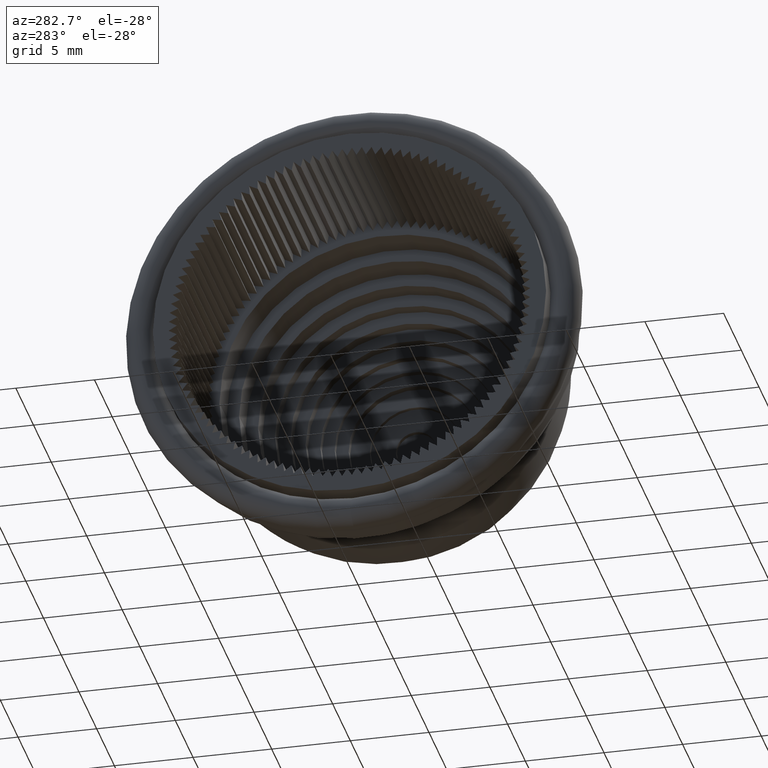
[diagram: clean part render]
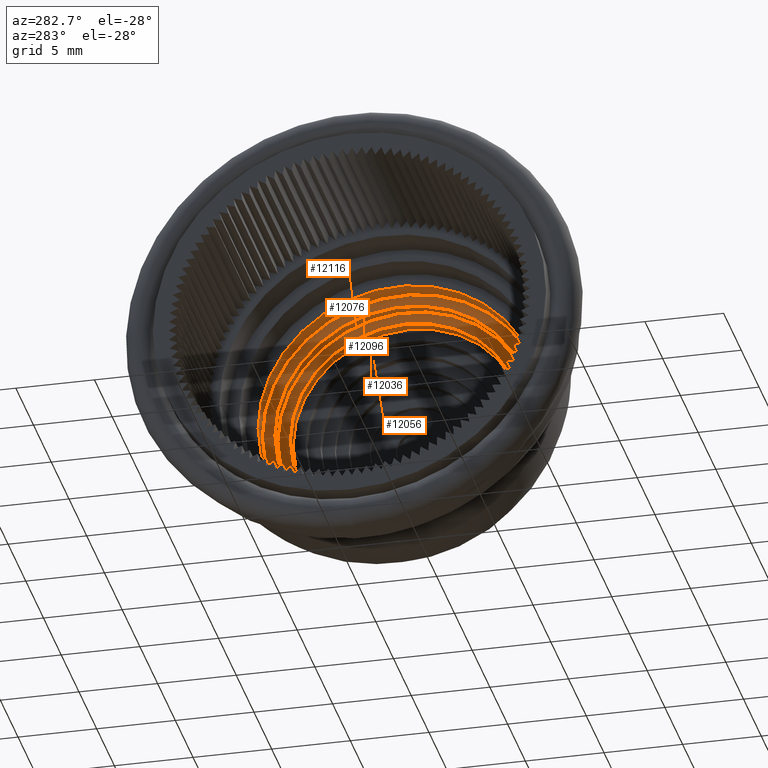
[diagram: same view with one multi-face feature highlighted, each face labeled with its STEP entity id]
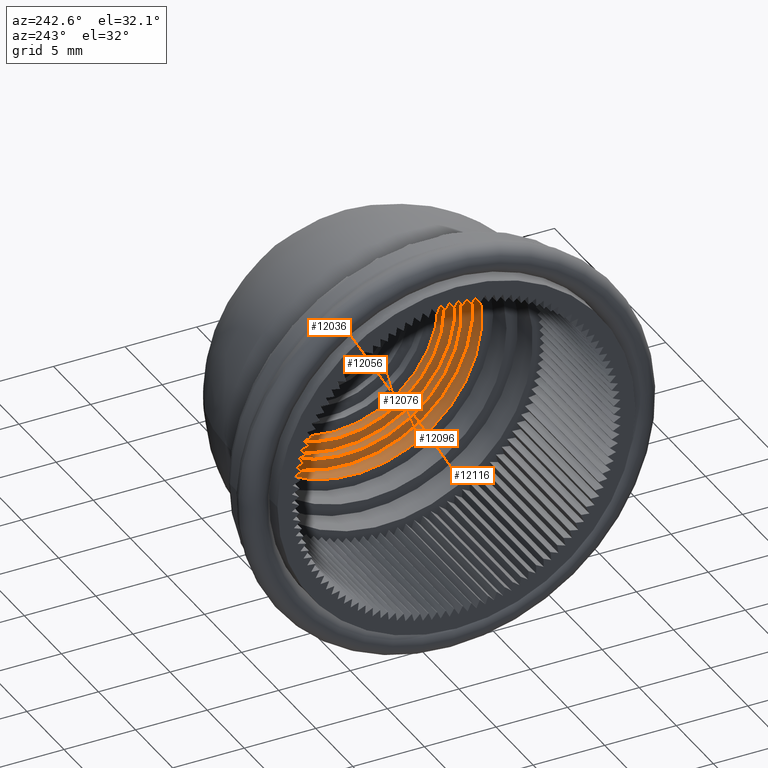
[diagram: same view with one multi-face feature highlighted, each face labeled with its STEP entity id]
A machine part, auxiliary view. The highlighted faces form ONE feature: a stepped (counterbored) hole: 3 coaxial cylindrical walls of radii 7.3125 -> 8.1125 -> 8.9125 mm joined by 2 annular planar shoulder face(s). The faces share edges in the B-rep.
A second angle (auxiliary view) of the same feature is appended — it is thin or edge-on in the first view.
Their STEP definitions:
[1] entity #12116 (Cylinder):
#12082=CARTESIAN_POINT('',(-7.485065524830184,12.780505523844454,0.0));
#12083=VERTEX_POINT('',#12082);
#12084=CARTESIAN_POINT('',(-7.485065524830184,3.867980793193076,0.0));
#12085=DIRECTION('',(1.0,0.0,0.0));
#12086=DIRECTION('',(0.0,1.0,0.0));
#12087=AXIS2_PLACEMENT_3D('',#12084,#12085,#12086);
#12088=CIRCLE('',#12087,8.912524730651379);
#12089=EDGE_CURVE('',#12083,#12083,#12088,.T.);
#12097=CARTESIAN_POINT('',(-8.085065524830185,3.867980793193076,0.0));
#12098=DIRECTION('',(1.0,0.0,0.0));
#12099=DIRECTION('',(0.0,1.0,0.0));
#12100=AXIS2_PLACEMENT_3D('',#12097,#12098,#12099);
#12101=CYLINDRICAL_SURFACE('',#12100,8.912524730651377);
#12102=CARTESIAN_POINT('',(-8.685065524830185,12.780505523844450,0.0));
#12103=VERTEX_POINT('',#12102);
#12104=CARTESIAN_POINT('',(-8.685065524830185,3.867980793193076,0.0));
#12105=DIRECTION('',(1.0,0.0,0.0));
#12106=DIRECTION('',(0.0,1.0,0.0));
#12107=AXIS2_PLACEMENT_3D('',#12104,#12105,#12106);
#12108=CIRCLE('',#12107,8.912524730651374);
#12109=EDGE_CURVE('',#12103,#12103,#12108,.T.);
#12110=ORIENTED_EDGE('',*,*,#12109,.F.);
#12111=EDGE_LOOP('',(#12110));
#12112=FACE_OUTER_BOUND('',#12111,.T.);
#12113=ORIENTED_EDGE('',*,*,#12089,.T.);
#12114=EDGE_LOOP('',(#12113));
#12115=FACE_BOUND('',#12114,.T.);
#12116=ADVANCED_FACE('',(#12112,#12115),#12101,.F.);
[2] entity #12076 (Cylinder):
#12042=CARTESIAN_POINT('',(-6.685065524830184,11.980505523844451,0.0));
#12043=VERTEX_POINT('',#12042);
#12044=CARTESIAN_POINT('',(-6.685065524830184,3.867980793193076,0.0));
#12045=DIRECTION('',(1.0,0.0,0.0));
#12046=DIRECTION('',(0.0,1.0,0.0));
#12047=AXIS2_PLACEMENT_3D('',#12044,#12045,#12046);
#12048=CIRCLE('',#12047,8.112524730651376);
#12049=EDGE_CURVE('',#12043,#12043,#12048,.T.);
#12057=CARTESIAN_POINT('',(-7.085065524830183,3.867980793193076,0.0));
#12058=DIRECTION('',(1.0,0.0,0.0));
#12059=DIRECTION('',(0.0,1.0,0.0));
#12060=AXIS2_PLACEMENT_3D('',#12057,#12058,#12059);
#12061=CYLINDRICAL_SURFACE('',#12060,8.112524730651376);
#12062=CARTESIAN_POINT('',(-7.485065524830183,11.980505523844453,0.0));
#12063=VERTEX_POINT('',#12062);
#12064=CARTESIAN_POINT('',(-7.485065524830183,3.867980793193076,0.0));
#12065=DIRECTION('',(1.0,0.0,0.0));
#12066=DIRECTION('',(0.0,1.0,0.0));
#12067=AXIS2_PLACEMENT_3D('',#12064,#12065,#12066);
#12068=CIRCLE('',#12067,8.112524730651378);
#12069=EDGE_CURVE('',#12063,#12063,#12068,.T.);
#12070=ORIENTED_EDGE('',*,*,#12069,.F.);
#12071=EDGE_LOOP('',(#12070));
#12072=FACE_OUTER_BOUND('',#12071,.T.);
#12073=ORIENTED_EDGE('',*,*,#12049,.T.);
#12074=EDGE_LOOP('',(#12073));
#12075=FACE_BOUND('',#12074,.T.);
#12076=ADVANCED_FACE('',(#12072,#12075),#12061,.F.);
[3] entity #12036 (Cylinder):
#12002=CARTESIAN_POINT('',(-5.920401766472454,11.180505523844451,0.0));
#12003=VERTEX_POINT('',#12002);
#12004=CARTESIAN_POINT('',(-5.920401766472454,3.867980793193076,0.0));
#12005=DIRECTION('',(1.0,0.0,0.0));
#12006=DIRECTION('',(0.0,1.0,0.0));
#12007=AXIS2_PLACEMENT_3D('',#12004,#12005,#12006);
#12008=CIRCLE('',#12007,7.312524730651376);
#12009=EDGE_CURVE('',#12003,#12003,#12008,.T.);
#12017=CARTESIAN_POINT('',(-6.302733645651317,3.867980793193076,0.0));
#12018=DIRECTION('',(1.0,0.0,0.0));
#12019=DIRECTION('',(0.0,1.0,0.0));
#12020=AXIS2_PLACEMENT_3D('',#12017,#12018,#12019);
#12021=CYLINDRICAL_SURFACE('',#12020,7.312524730651376);
#12022=CARTESIAN_POINT('',(-6.685065524830181,11.180505523844451,0.0));
#12023=VERTEX_POINT('',#12022);
#12024=CARTESIAN_POINT('',(-6.685065524830181,3.867980793193076,0.0));
#12025=DIRECTION('',(1.0,0.0,0.0));
#12026=DIRECTION('',(0.0,1.0,0.0));
#12027=AXIS2_PLACEMENT_3D('',#12024,#12025,#12026);
#12028=CIRCLE('',#12027,7.312524730651376);
#12029=EDGE_CURVE('',#12023,#12023,#12028,.T.);
#12030=ORIENTED_EDGE('',*,*,#12029,.F.);
#12031=EDGE_LOOP('',(#12030));
#12032=FACE_OUTER_BOUND('',#12031,.T.);
#12033=ORIENTED_EDGE('',*,*,#12009,.T.);
#12034=EDGE_LOOP('',(#12033));
#12035=FACE_BOUND('',#12034,.T.);
#12036=ADVANCED_FACE('',(#12032,#12035),#12021,.F.);
[4] entity #12096 (Plane):
#12062=CARTESIAN_POINT('',(-7.485065524830183,11.980505523844453,0.0));
#12063=VERTEX_POINT('',#12062);
#12064=CARTESIAN_POINT('',(-7.485065524830183,3.867980793193076,0.0));
#12065=DIRECTION('',(1.0,0.0,0.0));
#12066=DIRECTION('',(0.0,1.0,0.0));
#12067=AXIS2_PLACEMENT_3D('',#12064,#12065,#12066);
#12068=CIRCLE('',#12067,8.112524730651378);
#12069=EDGE_CURVE('',#12063,#12063,#12068,.T.);
#12077=CARTESIAN_POINT('',(-7.485065524830183,12.380505523844453,0.0));
#12078=DIRECTION('',(-1.0,0.0,0.0));
#12079=DIRECTION('',(0.0,0.0,1.0));
#12080=AXIS2_PLACEMENT_3D('',#12077,#12078,#12079);
#12081=PLANE('',#12080);
#12082=CARTESIAN_POINT('',(-7.485065524830184,12.780505523844454,0.0));
#12083=VERTEX_POINT('',#12082);
#12084=CARTESIAN_POINT('',(-7.485065524830184,3.867980793193076,0.0));
#12085=DIRECTION('',(1.0,0.0,0.0));
#12086=DIRECTION('',(0.0,1.0,0.0));
#12087=AXIS2_PLACEMENT_3D('',#12084,#12085,#12086);
#12088=CIRCLE('',#12087,8.912524730651379);
#12089=EDGE_CURVE('',#12083,#12083,#12088,.T.);
#12090=ORIENTED_EDGE('',*,*,#12089,.F.);
#12091=EDGE_LOOP('',(#12090));
#12092=FACE_OUTER_BOUND('',#12091,.T.);
#12093=ORIENTED_EDGE('',*,*,#12069,.T.);
#12094=EDGE_LOOP('',(#12093));
#12095=FACE_BOUND('',#12094,.T.);
#12096=ADVANCED_FACE('',(#12092,#12095),#12081,.T.);
[5] entity #12056 (Plane):
#12022=CARTESIAN_POINT('',(-6.685065524830181,11.180505523844451,0.0));
#12023=VERTEX_POINT('',#12022);
#12024=CARTESIAN_POINT('',(-6.685065524830181,3.867980793193076,0.0));
#12025=DIRECTION('',(1.0,0.0,0.0));
#12026=DIRECTION('',(0.0,1.0,0.0));
#12027=AXIS2_PLACEMENT_3D('',#12024,#12025,#12026);
#12028=CIRCLE('',#12027,7.312524730651376);
#12029=EDGE_CURVE('',#12023,#12023,#12028,.T.);
#12037=CARTESIAN_POINT('',(-6.685065524830183,11.580505523844451,0.0));
#12038=DIRECTION('',(-1.0,0.0,0.0));
#12039=DIRECTION('',(0.0,0.0,1.0));
#12040=AXIS2_PLACEMENT_3D('',#12037,#12038,#12039);
#12041=PLANE('',#12040);
#12042=CARTESIAN_POINT('',(-6.685065524830184,11.980505523844451,0.0));
#12043=VERTEX_POINT('',#12042);
#12044=CARTESIAN_POINT('',(-6.685065524830184,3.867980793193076,0.0));
#12045=DIRECTION('',(1.0,0.0,0.0));
#12046=DIRECTION('',(0.0,1.0,0.0));
#12047=AXIS2_PLACEMENT_3D('',#12044,#12045,#12046);
#12048=CIRCLE('',#12047,8.112524730651376);
#12049=EDGE_CURVE('',#12043,#12043,#12048,.T.);
#12050=ORIENTED_EDGE('',*,*,#12049,.F.);
#12051=EDGE_LOOP('',(#12050));
#12052=FACE_OUTER_BOUND('',#12051,.T.);
#12053=ORIENTED_EDGE('',*,*,#12029,.T.);
#12054=EDGE_LOOP('',(#12053));
#12055=FACE_BOUND('',#12054,.T.);
#12056=ADVANCED_FACE('',(#12052,#12055),#12041,.T.);